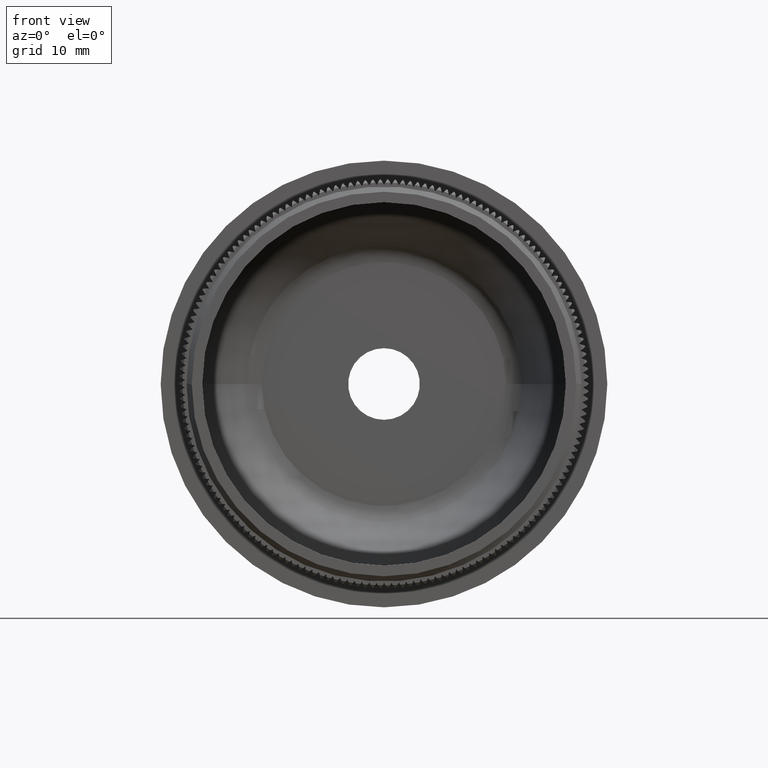
[diagram: clean part render]
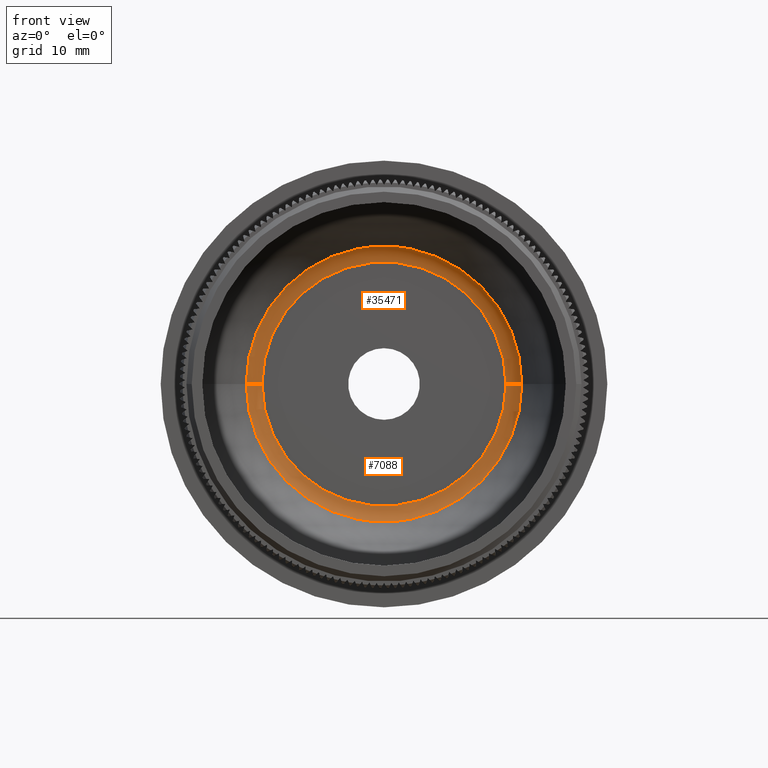
[diagram: same view with one multi-face feature highlighted, each face labeled with its STEP entity id]
A machine part, front view. The highlighted faces form ONE feature: a constant-radius fillet chain: 2 tangent blend faces with common blend radius 2 mm. The faces share edges in the B-rep.
Their STEP definitions:
[1] entity #7088 (Torus):
#496 = VERTEX_POINT ( 'NONE', #6548 ) ;
#2713 = FACE_OUTER_BOUND ( 'NONE', #16661, .T. ) ;
#3409 = AXIS2_PLACEMENT_3D ( 'NONE', #22261, #22022, #36696 ) ;
#4044 = CARTESIAN_POINT ( 'NONE',  ( -3.223978165369161200E-015, 26.32903225806455800, 0.0000000000000000000 ) ) ;
#5372 = DIRECTION ( 'NONE',  ( 1.000000000000000000, 1.224304257678195700E-016, 0.0000000000000000000 ) ) ;
#6254 = CARTESIAN_POINT ( 'NONE',  ( 13.07729363212792800, 26.32903225806455800, -1.857011153669367900E-015 ) ) ;
#6548 = CARTESIAN_POINT ( 'NONE',  ( -13.07729363212793500, 26.32903225806455800, 0.0000000000000000000 ) ) ;
#7088 = ADVANCED_FACE ( 'NONE', ( #2713 ), #26726, .F. ) ;
#7321 = ORIENTED_EDGE ( 'NONE', *, *, #21950, .T. ) ;
#8002 = DIRECTION ( 'NONE',  ( 1.224304257678195700E-016, -1.000000000000000000, 0.0000000000000000000 ) ) ;
#8319 = DIRECTION ( 'NONE',  ( 1.224646799147353200E-016, 1.499340290348078700E-032, 1.000000000000000000 ) ) ;
#8789 = VERTEX_POINT ( 'NONE', #9447 ) ;
#9447 = CARTESIAN_POINT ( 'NONE',  ( 11.58274578845616400, 27.00000000000003900, 0.0000000000000000000 ) ) ;
#11836 = AXIS2_PLACEMENT_3D ( 'NONE', #4044, #33590, #33069 ) ;
#12473 = CIRCLE ( 'NONE', #11836, 13.07729363212793100 ) ;
#13070 = AXIS2_PLACEMENT_3D ( 'NONE', #19759, #8002, #16902 ) ;
#14162 = DIRECTION ( 'NONE',  ( 1.000000000000000000, 0.0000000000000000000, -1.224646799147353500E-016 ) ) ;
#14511 = CIRCLE ( 'NONE', #3409, 2.000000000000000000 ) ;
#14951 = VERTEX_POINT ( 'NONE', #6254 ) ;
#15950 = ORIENTED_EDGE ( 'NONE', *, *, #29043, .F. ) ;
#16569 = ORIENTED_EDGE ( 'NONE', *, *, #37744, .F. ) ;
#16661 = EDGE_LOOP ( 'NONE', ( #30493, #7321, #15950, #16569 ) ) ;
#16902 = DIRECTION ( 'NONE',  ( 1.000000000000000000, 0.0000000000000000000, 0.0000000000000000000 ) ) ;
#19759 = CARTESIAN_POINT ( 'NONE',  ( -3.306125031690794000E-015, 27.00000000000003900, 0.0000000000000000000 ) ) ;
#20618 = CIRCLE ( 'NONE', #30192, 2.000000000000000000 ) ;
#21950 = EDGE_CURVE ( 'NONE', #28063, #496, #20618, .T. ) ;
#22022 = DIRECTION ( 'NONE',  ( 0.0000000000000000000, 0.0000000000000000000, -1.000000000000000000 ) ) ;
#22261 = CARTESIAN_POINT ( 'NONE',  ( 11.58274578845616400, 25.00000000000003600, 0.0000000000000000000 ) ) ;
#23222 = AXIS2_PLACEMENT_3D ( 'NONE', #38132, #26157, #5372 ) ;
#26157 = DIRECTION ( 'NONE',  ( 1.224304257678195700E-016, -1.000000000000000000, 0.0000000000000000000 ) ) ;
#26726 = TOROIDAL_SURFACE ( 'NONE', #23222, 11.58274578845616700, 2.000000000000000000 ) ;
#27261 = CIRCLE ( 'NONE', #13070, 11.58274578845616700 ) ;
#28063 = VERTEX_POINT ( 'NONE', #31947 ) ;
#29043 = EDGE_CURVE ( 'NONE', #14951, #496, #12473, .T. ) ;
#29502 = EDGE_CURVE ( 'NONE', #28063, #8789, #27261, .T. ) ;
#30192 = AXIS2_PLACEMENT_3D ( 'NONE', #32306, #8319, #14162 ) ;
#30493 = ORIENTED_EDGE ( 'NONE', *, *, #29502, .F. ) ;
#31947 = CARTESIAN_POINT ( 'NONE',  ( -11.58274578845617100, 27.00000000000003900, 1.509991917163293400E-015 ) ) ;
#32306 = CARTESIAN_POINT ( 'NONE',  ( -11.58274578845617100, 25.00000000000003600, 1.418477255517033100E-015 ) ) ;
#33069 = DIRECTION ( 'NONE',  ( 1.000000000000000000, 0.0000000000000000000, 0.0000000000000000000 ) ) ;
#33590 = DIRECTION ( 'NONE',  ( -1.224304257678195700E-016, 1.000000000000000000, -0.0000000000000000000 ) ) ;
#36696 = DIRECTION ( 'NONE',  ( -1.000000000000000000, 0.0000000000000000000, 0.0000000000000000000 ) ) ;
#37744 = EDGE_CURVE ( 'NONE', #8789, #14951, #14511, .T. ) ;
#38132 = CARTESIAN_POINT ( 'NONE',  ( -3.061264180155155100E-015, 25.00000000000003600, 0.0000000000000000000 ) ) ;
[2] entity #35471 (Torus):
#289 = EDGE_CURVE ( 'NONE', #496, #14951, #36290, .T. ) ;
#496 = VERTEX_POINT ( 'NONE', #6548 ) ;
#3409 = AXIS2_PLACEMENT_3D ( 'NONE', #22261, #22022, #36696 ) ;
#5318 = EDGE_LOOP ( 'NONE', ( #36054, #21808, #6425, #11203 ) ) ;
#6254 = CARTESIAN_POINT ( 'NONE',  ( 13.07729363212792800, 26.32903225806455800, -1.857011153669367900E-015 ) ) ;
#6425 = ORIENTED_EDGE ( 'NONE', *, *, #37744, .T. ) ;
#6548 = CARTESIAN_POINT ( 'NONE',  ( -13.07729363212793500, 26.32903225806455800, 0.0000000000000000000 ) ) ;
#6702 = DIRECTION ( 'NONE',  ( 1.224304257678195700E-016, -1.000000000000000000, 0.0000000000000000000 ) ) ;
#7561 = EDGE_CURVE ( 'NONE', #8789, #28063, #12812, .T. ) ;
#8319 = DIRECTION ( 'NONE',  ( 1.224646799147353200E-016, 1.499340290348078700E-032, 1.000000000000000000 ) ) ;
#8789 = VERTEX_POINT ( 'NONE', #9447 ) ;
#9447 = CARTESIAN_POINT ( 'NONE',  ( 11.58274578845616400, 27.00000000000003900, 0.0000000000000000000 ) ) ;
#11203 = ORIENTED_EDGE ( 'NONE', *, *, #289, .F. ) ;
#12812 = CIRCLE ( 'NONE', #23966, 11.58274578845616700 ) ;
#14162 = DIRECTION ( 'NONE',  ( 1.000000000000000000, 0.0000000000000000000, -1.224646799147353500E-016 ) ) ;
#14511 = CIRCLE ( 'NONE', #3409, 2.000000000000000000 ) ;
#14951 = VERTEX_POINT ( 'NONE', #6254 ) ;
#20618 = CIRCLE ( 'NONE', #30192, 2.000000000000000000 ) ;
#21808 = ORIENTED_EDGE ( 'NONE', *, *, #7561, .F. ) ;
#21950 = EDGE_CURVE ( 'NONE', #28063, #496, #20618, .T. ) ;
#22022 = DIRECTION ( 'NONE',  ( 0.0000000000000000000, 0.0000000000000000000, -1.000000000000000000 ) ) ;
#22261 = CARTESIAN_POINT ( 'NONE',  ( 11.58274578845616400, 25.00000000000003600, 0.0000000000000000000 ) ) ;
#23724 = FACE_OUTER_BOUND ( 'NONE', #5318, .T. ) ;
#23966 = AXIS2_PLACEMENT_3D ( 'NONE', #26106, #31491, #34476 ) ;
#26106 = CARTESIAN_POINT ( 'NONE',  ( -3.306125031690794000E-015, 27.00000000000003900, 0.0000000000000000000 ) ) ;
#26178 = DIRECTION ( 'NONE',  ( 1.000000000000000000, 0.0000000000000000000, 0.0000000000000000000 ) ) ;
#28063 = VERTEX_POINT ( 'NONE', #31947 ) ;
#28743 = DIRECTION ( 'NONE',  ( -1.224304257678195700E-016, 1.000000000000000000, -0.0000000000000000000 ) ) ;
#30192 = AXIS2_PLACEMENT_3D ( 'NONE', #32306, #8319, #14162 ) ;
#31491 = DIRECTION ( 'NONE',  ( 1.224304257678195700E-016, -1.000000000000000000, 0.0000000000000000000 ) ) ;
#31644 = AXIS2_PLACEMENT_3D ( 'NONE', #32209, #28743, #26178 ) ;
#31947 = CARTESIAN_POINT ( 'NONE',  ( -11.58274578845617100, 27.00000000000003900, 1.509991917163293400E-015 ) ) ;
#32209 = CARTESIAN_POINT ( 'NONE',  ( -3.223978165369161200E-015, 26.32903225806455800, 0.0000000000000000000 ) ) ;
#32306 = CARTESIAN_POINT ( 'NONE',  ( -11.58274578845617100, 25.00000000000003600, 1.418477255517033100E-015 ) ) ;
#32501 = TOROIDAL_SURFACE ( 'NONE', #33213, 11.58274578845616700, 2.000000000000000000 ) ;
#33213 = AXIS2_PLACEMENT_3D ( 'NONE', #36099, #6702, #37579 ) ;
#34476 = DIRECTION ( 'NONE',  ( 1.000000000000000000, 0.0000000000000000000, 0.0000000000000000000 ) ) ;
#35471 = ADVANCED_FACE ( 'NONE', ( #23724 ), #32501, .F. ) ;
#36054 = ORIENTED_EDGE ( 'NONE', *, *, #21950, .F. ) ;
#36099 = CARTESIAN_POINT ( 'NONE',  ( -3.061264180155155100E-015, 25.00000000000003600, 0.0000000000000000000 ) ) ;
#36290 = CIRCLE ( 'NONE', #31644, 13.07729363212793100 ) ;
#36696 = DIRECTION ( 'NONE',  ( -1.000000000000000000, 0.0000000000000000000, 0.0000000000000000000 ) ) ;
#37579 = DIRECTION ( 'NONE',  ( 1.000000000000000000, 1.224304257678195700E-016, 0.0000000000000000000 ) ) ;
#37744 = EDGE_CURVE ( 'NONE', #8789, #14951, #14511, .T. ) ;